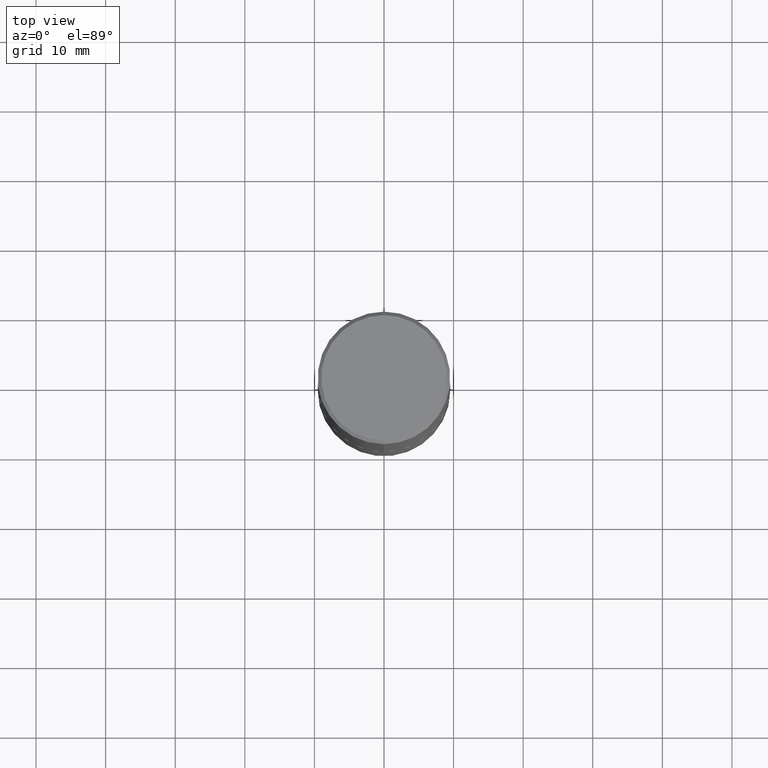
[diagram: clean part render]
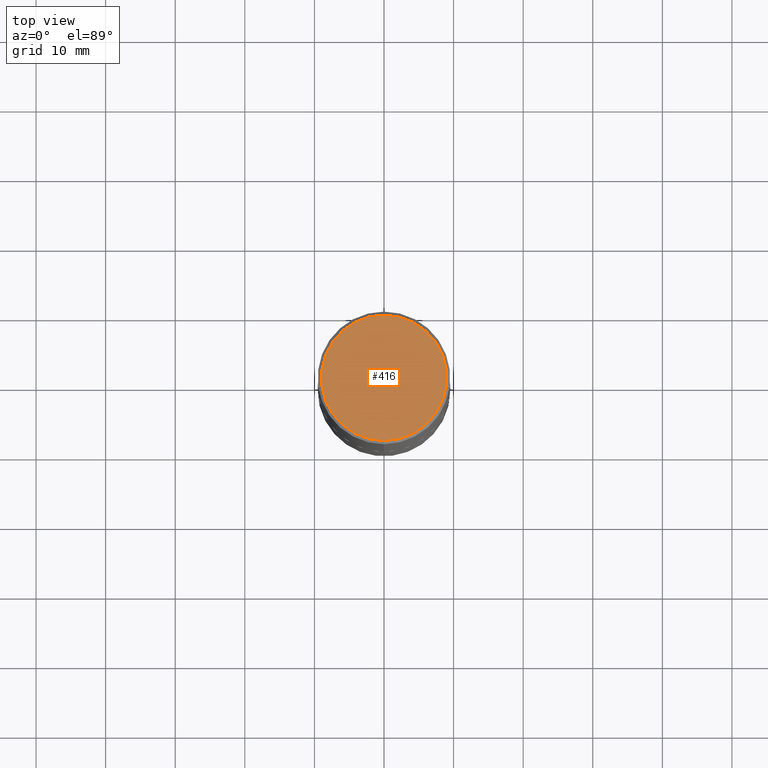
[diagram: same view with one face highlighted and labeled with its STEP entity id]
A machine part, top view. The second image highlights one B-rep face of the part: STEP entity #416.
In plain terms, the highlighted planar face has unit normal (0, -0, -1).
Its self-contained STEP definition (entity closure, byte-faithful):
#10 = EDGE_LOOP ( 'NONE', ( #233, #396 ) ) ;
#19 = EDGE_CURVE ( 'NONE', #294, #58, #226, .T. ) ;
#39 = EDGE_CURVE ( 'NONE', #58, #294, #266, .T. ) ;
#58 = VERTEX_POINT ( 'NONE', #298 ) ;
#66 = DIRECTION ( 'NONE',  ( -2.444946167972934928E-29, 3.492229786509738161E-15, 1.000000000000000000 ) ) ;
#98 = CARTESIAN_POINT ( 'NONE',  ( -4.181009497849235809E-45, 5.971929401690963589E-31, 1.710061985256567949E-16 ) ) ;
#115 = AXIS2_PLACEMENT_3D ( 'NONE', #98, #66, #231 ) ;
#144 = DIRECTION ( 'NONE',  ( 6.982962677686265922E-15, 1.000000000000000000, -3.492229786509738161E-15 ) ) ;
#195 = CARTESIAN_POINT ( 'NONE',  ( 2.478951750578623420E-15, 0.3549999999999998157, -1.154238474948128131E-15 ) ) ;
#198 = AXIS2_PLACEMENT_3D ( 'NONE', #195, #236, #144 ) ;
#221 = CARTESIAN_POINT ( 'NONE',  ( -4.181009497849235809E-45, 5.971929401690963589E-31, 1.710061985256567949E-16 ) ) ;
#226 = CIRCLE ( 'NONE', #392, 0.3549999999999998157 ) ;
#231 = DIRECTION ( 'NONE',  ( -6.982962677686266711E-15, -1.000000000000000000, 3.492229786509737767E-15 ) ) ;
#233 = ORIENTED_EDGE ( 'NONE', *, *, #19, .T. ) ;
#236 = DIRECTION ( 'NONE',  ( 2.444946167972934647E-29, -3.492229786509738161E-15, -1.000000000000000000 ) ) ;
#250 = FACE_OUTER_BOUND ( 'NONE', #10, .T. ) ;
#266 = CIRCLE ( 'NONE', #115, 0.3549999999999998157 ) ;
#294 = VERTEX_POINT ( 'NONE', #323 ) ;
#298 = CARTESIAN_POINT ( 'NONE',  ( -2.504081769186608216E-15, -0.3549999999999998157, 1.410747772736613804E-15 ) ) ;
#323 = CARTESIAN_POINT ( 'NONE',  ( 2.548781377355487113E-15, 0.3549999999999998157, -1.068735375685299770E-15 ) ) ;
#353 = DIRECTION ( 'NONE',  ( -6.982962677686266711E-15, -1.000000000000000000, 3.492229786509737767E-15 ) ) ;
#358 = DIRECTION ( 'NONE',  ( -2.444946167972934928E-29, 3.492229786509738161E-15, 1.000000000000000000 ) ) ;
#392 = AXIS2_PLACEMENT_3D ( 'NONE', #221, #358, #353 ) ;
#396 = ORIENTED_EDGE ( 'NONE', *, *, #39, .T. ) ;
#412 = PLANE ( 'NONE',  #198 ) ;
#416 = ADVANCED_FACE ( 'NONE', ( #250 ), #412, .F. ) ;